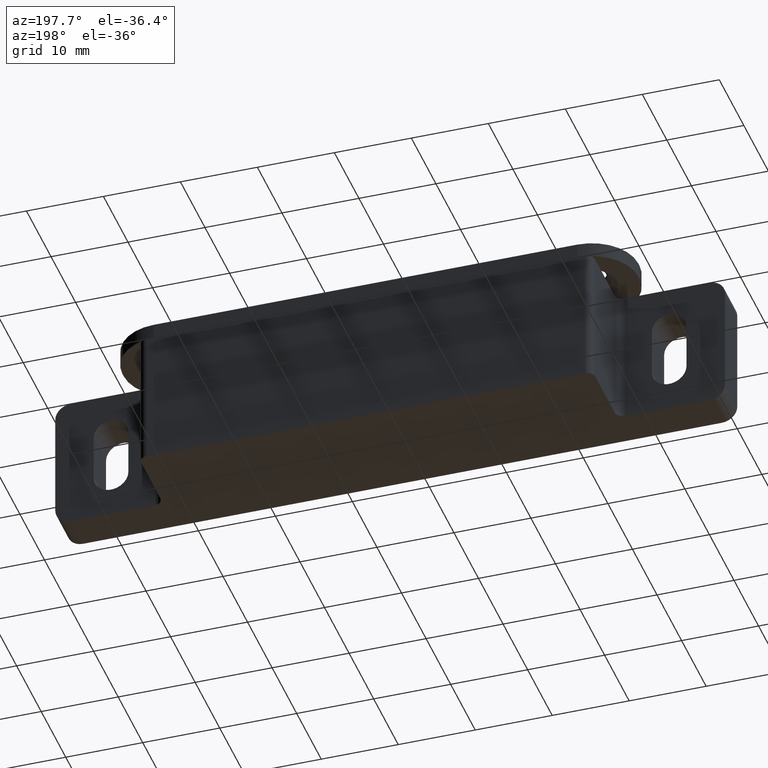
[diagram: clean part render]
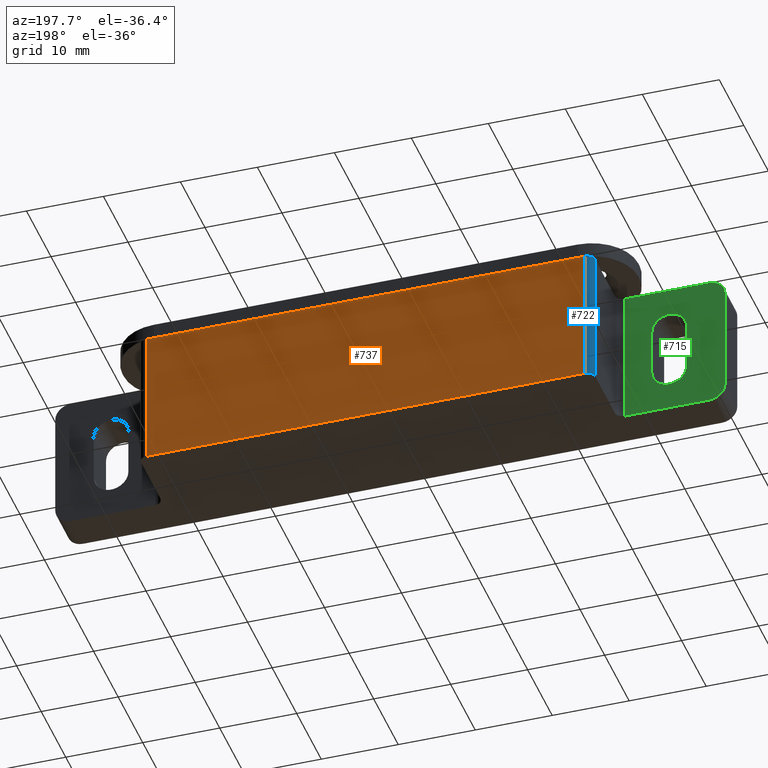
[diagram: same view with three faces highlighted in distinct colors, each labeled with its STEP entity id]
A machine part, auxiliary view with three faces highlighted in distinct colors.
Their STEP definitions:

[orange] entity #737 — the highlighted planar face has unit normal (-0, 1, 0).
#53=PLANE('',#804);
#85=FACE_OUTER_BOUND('',#127,.T.);
#127=EDGE_LOOP('',(#615,#616,#617,#618));
#157=LINE('',#1088,#221);
#173=LINE('',#1136,#237);
#182=LINE('',#1168,#246);
#187=LINE('',#1177,#251);
#221=VECTOR('',#856,57.);
#237=VECTOR('',#894,57.);
#246=VECTOR('',#929,18.);
#251=VECTOR('',#942,18.);
#326=VERTEX_POINT('',#1085);
#327=VERTEX_POINT('',#1087);
#347=VERTEX_POINT('',#1133);
#348=VERTEX_POINT('',#1135);
#397=EDGE_CURVE('',#327,#326,#157,.T.);
#421=EDGE_CURVE('',#347,#348,#173,.T.);
#438=EDGE_CURVE('',#348,#326,#182,.T.);
#443=EDGE_CURVE('',#327,#347,#187,.T.);
#615=ORIENTED_EDGE('',*,*,#438,.F.);
#616=ORIENTED_EDGE('',*,*,#421,.F.);
#617=ORIENTED_EDGE('',*,*,#443,.F.);
#618=ORIENTED_EDGE('',*,*,#397,.T.);
#737=ADVANCED_FACE('',(#85),#53,.T.);
#804=AXIS2_PLACEMENT_3D('',#1213,#984,#985);
#856=DIRECTION('',(-1.,-4.1398146680938E-16,0.));
#894=DIRECTION('',(-1.,-4.1398146680938E-16,0.));
#929=DIRECTION('',(0.,0.,-1.));
#942=DIRECTION('',(0.,0.,1.));
#984=DIRECTION('center_axis',(-4.1398146680938E-16,1.,0.));
#985=DIRECTION('ref_axis',(-1.,-3.5527136788005E-16,0.));
#1085=CARTESIAN_POINT('',(15.,15.,0.));
#1087=CARTESIAN_POINT('',(72.,15.,0.));
#1088=CARTESIAN_POINT('',(73.,15.,0.));
#1133=CARTESIAN_POINT('',(72.,15.,18.));
#1135=CARTESIAN_POINT('',(15.,15.,18.));
#1136=CARTESIAN_POINT('',(73.,15.,18.));
#1168=CARTESIAN_POINT('',(15.,15.,0.));
#1177=CARTESIAN_POINT('',(72.,15.,0.));
#1213=CARTESIAN_POINT('Origin',(73.,15.,0.));

[blue] entity #722 — the highlighted cylindrical surface (edge-blend (fillet) strip) has radius 1 mm, axis along (0, 0, 1).
#70=FACE_OUTER_BOUND('',#112,.T.);
#112=EDGE_LOOP('',(#555,#556,#557,#558));
#182=LINE('',#1168,#246);
#183=LINE('',#1169,#247);
#246=VECTOR('',#929,18.);
#247=VECTOR('',#930,18.);
#284=CIRCLE('',#761,1.);
#293=CIRCLE('',#773,1.);
#325=VERTEX_POINT('',#1083);
#326=VERTEX_POINT('',#1085);
#348=VERTEX_POINT('',#1135);
#349=VERTEX_POINT('',#1137);
#396=EDGE_CURVE('',#326,#325,#284,.T.);
#422=EDGE_CURVE('',#349,#348,#293,.T.);
#438=EDGE_CURVE('',#348,#326,#182,.T.);
#439=EDGE_CURVE('',#325,#349,#183,.T.);
#555=ORIENTED_EDGE('',*,*,#422,.T.);
#556=ORIENTED_EDGE('',*,*,#438,.T.);
#557=ORIENTED_EDGE('',*,*,#396,.T.);
#558=ORIENTED_EDGE('',*,*,#439,.T.);
#699=CYLINDRICAL_SURFACE('',#785,1.);
#722=ADVANCED_FACE('',(#70),#699,.T.);
#761=AXIS2_PLACEMENT_3D('',#1086,#854,#855);
#773=AXIS2_PLACEMENT_3D('',#1138,#895,#896);
#785=AXIS2_PLACEMENT_3D('',#1167,#927,#928);
#854=DIRECTION('center_axis',(0.,0.,1.));
#855=DIRECTION('ref_axis',(-0.707106781186549,0.707106781186546,0.));
#895=DIRECTION('center_axis',(0.,0.,-1.));
#896=DIRECTION('ref_axis',(-0.707106781186549,0.707106781186546,0.));
#927=DIRECTION('center_axis',(0.,0.,1.));
#928=DIRECTION('ref_axis',(-0.707106781186549,0.707106781186546,0.));
#929=DIRECTION('',(0.,0.,-1.));
#930=DIRECTION('',(0.,0.,1.));
#1083=CARTESIAN_POINT('',(14.,14.,0.));
#1085=CARTESIAN_POINT('',(15.,15.,0.));
#1086=CARTESIAN_POINT('Origin',(15.,14.,0.));
#1135=CARTESIAN_POINT('',(15.,15.,18.));
#1137=CARTESIAN_POINT('',(14.,14.,18.));
#1138=CARTESIAN_POINT('Origin',(15.,14.,18.));
#1167=CARTESIAN_POINT('Origin',(15.,14.,0.));
#1168=CARTESIAN_POINT('',(15.,15.,0.));
#1169=CARTESIAN_POINT('',(14.,14.,0.));

[green] entity #715 — the highlighted planar face has unit normal (0, 1, 0).
#29=FACE_BOUND('',#104,.T.);
#42=PLANE('',#764);
#63=FACE_OUTER_BOUND('',#103,.T.);
#103=EDGE_LOOP('',(#507,#508,#509,#510,#511,#512));
#104=EDGE_LOOP('',(#513,#514,#515,#516));
#155=LINE('',#1080,#219);
#162=LINE('',#1102,#226);
#163=LINE('',#1106,#227);
#164=LINE('',#1107,#228);
#165=LINE('',#1112,#229);
#166=LINE('',#1115,#230);
#219=VECTOR('',#850,11.);
#226=VECTOR('',#867,14.);
#227=VECTOR('',#870,11.);
#228=VECTOR('',#871,18.);
#229=VECTOR('',#874,6.2);
#230=VECTOR('',#877,6.2);
#282=CIRCLE('',#758,2.);
#287=CIRCLE('',#765,2.);
#288=CIRCLE('',#766,2.25);
#289=CIRCLE('',#767,2.25);
#321=VERTEX_POINT('',#1073);
#322=VERTEX_POINT('',#1075);
#323=VERTEX_POINT('',#1079);
#333=VERTEX_POINT('',#1101);
#334=VERTEX_POINT('',#1103);
#335=VERTEX_POINT('',#1105);
#336=VERTEX_POINT('',#1108);
#337=VERTEX_POINT('',#1109);
#338=VERTEX_POINT('',#1111);
#339=VERTEX_POINT('',#1113);
#391=EDGE_CURVE('',#321,#322,#282,.T.);
#393=EDGE_CURVE('',#323,#322,#155,.T.);
#404=EDGE_CURVE('',#321,#333,#162,.T.);
#405=EDGE_CURVE('',#334,#333,#287,.T.);
#406=EDGE_CURVE('',#335,#334,#163,.T.);
#407=EDGE_CURVE('',#323,#335,#164,.T.);
#408=EDGE_CURVE('',#336,#337,#288,.T.);
#409=EDGE_CURVE('',#337,#338,#165,.T.);
#410=EDGE_CURVE('',#338,#339,#289,.T.);
#411=EDGE_CURVE('',#339,#336,#166,.T.);
#507=ORIENTED_EDGE('',*,*,#391,.F.);
#508=ORIENTED_EDGE('',*,*,#404,.T.);
#509=ORIENTED_EDGE('',*,*,#405,.F.);
#510=ORIENTED_EDGE('',*,*,#406,.F.);
#511=ORIENTED_EDGE('',*,*,#407,.F.);
#512=ORIENTED_EDGE('',*,*,#393,.T.);
#513=ORIENTED_EDGE('',*,*,#408,.T.);
#514=ORIENTED_EDGE('',*,*,#409,.T.);
#515=ORIENTED_EDGE('',*,*,#410,.T.);
#516=ORIENTED_EDGE('',*,*,#411,.T.);
#715=ADVANCED_FACE('',(#63,#29),#42,.T.);
#758=AXIS2_PLACEMENT_3D('',#1076,#845,#846);
#764=AXIS2_PLACEMENT_3D('',#1100,#865,#866);
#765=AXIS2_PLACEMENT_3D('',#1104,#868,#869);
#766=AXIS2_PLACEMENT_3D('',#1110,#872,#873);
#767=AXIS2_PLACEMENT_3D('',#1114,#875,#876);
#845=DIRECTION('center_axis',(-5.55111512312578E-16,-1.,0.));
#846=DIRECTION('ref_axis',(-0.707106781186548,0.,-0.707106781186547));
#850=DIRECTION('',(-1.,5.55111512312578E-16,0.));
#865=DIRECTION('center_axis',(5.55111512312578E-16,1.,0.));
#866=DIRECTION('ref_axis',(-1.,5.32907051820075E-16,0.));
#867=DIRECTION('',(0.,0.,1.));
#868=DIRECTION('center_axis',(-5.55111512312578E-16,-1.,0.));
#869=DIRECTION('ref_axis',(-0.707106781186548,0.,0.707106781186548));
#870=DIRECTION('',(-1.,5.55111512312578E-16,0.));
#871=DIRECTION('',(0.,0.,1.));
#872=DIRECTION('center_axis',(-5.55111512312578E-16,-1.,0.));
#873=DIRECTION('ref_axis',(1.,0.,0.));
#874=DIRECTION('',(0.,0.,1.));
#875=DIRECTION('center_axis',(-5.55111512312578E-16,-1.,0.));
#876=DIRECTION('ref_axis',(-1.,0.,0.));
#877=DIRECTION('',(0.,0.,-1.));
#1073=CARTESIAN_POINT('',(0.,5.,2.));
#1075=CARTESIAN_POINT('',(2.,5.,0.));
#1076=CARTESIAN_POINT('Origin',(2.,4.99999999999999,2.));
#1079=CARTESIAN_POINT('',(13.,4.99999999999999,0.));
#1080=CARTESIAN_POINT('',(14.,4.99999999999999,0.));
#1100=CARTESIAN_POINT('Origin',(14.,4.99999999999999,0.));
#1101=CARTESIAN_POINT('',(0.,5.,16.));
#1102=CARTESIAN_POINT('',(0.,5.,0.));
#1103=CARTESIAN_POINT('',(2.,5.,18.));
#1104=CARTESIAN_POINT('Origin',(2.,4.99999999999999,16.));
#1105=CARTESIAN_POINT('',(13.,4.99999999999999,18.));
#1106=CARTESIAN_POINT('',(14.,4.99999999999999,18.));
#1107=CARTESIAN_POINT('',(13.,4.99999999999999,0.));
#1108=CARTESIAN_POINT('',(5.,5.,5.89));
#1109=CARTESIAN_POINT('',(9.49999999999999,5.,5.89));
#1110=CARTESIAN_POINT('Origin',(7.25,4.99999999999999,5.89));
#1111=CARTESIAN_POINT('',(9.49999999999999,5.,12.09));
#1112=CARTESIAN_POINT('',(9.49999999999999,4.99999999999999,2.945));
#1113=CARTESIAN_POINT('',(5.,5.,12.09));
#1114=CARTESIAN_POINT('Origin',(7.25,4.99999999999999,12.09));
#1115=CARTESIAN_POINT('',(5.,5.,6.045));